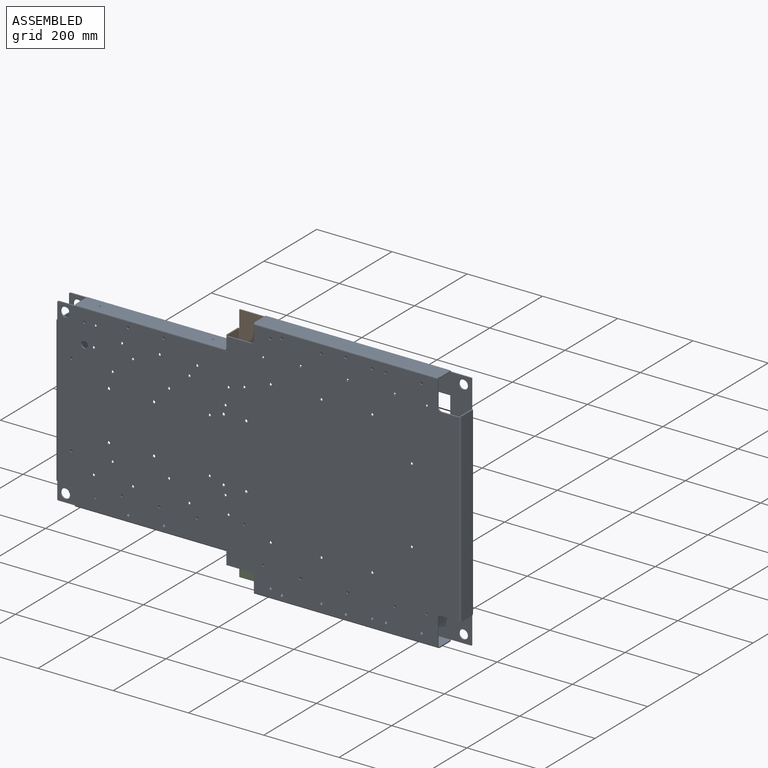
[diagram: assembled view]
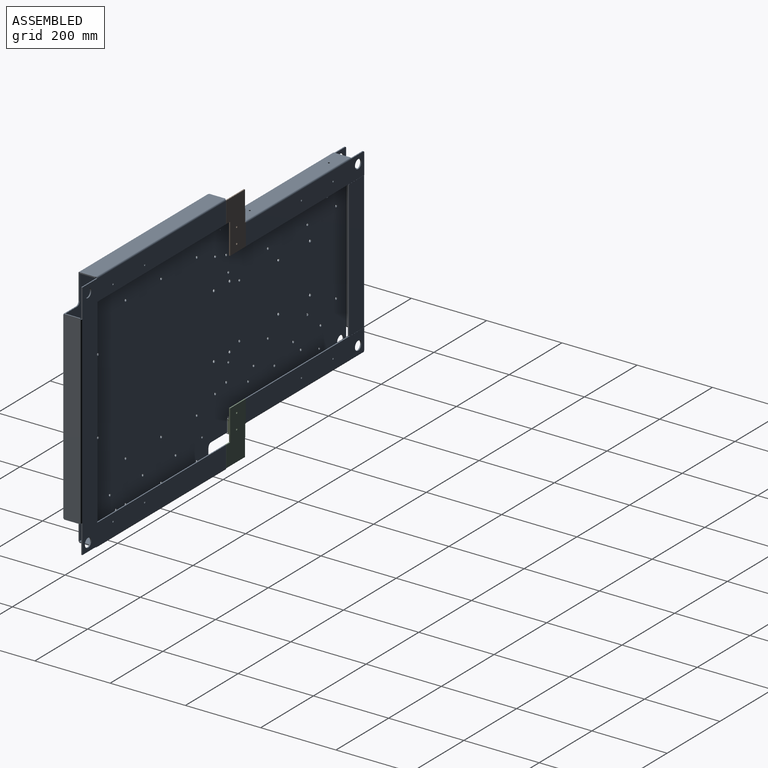
[diagram: assembled view, second angle]
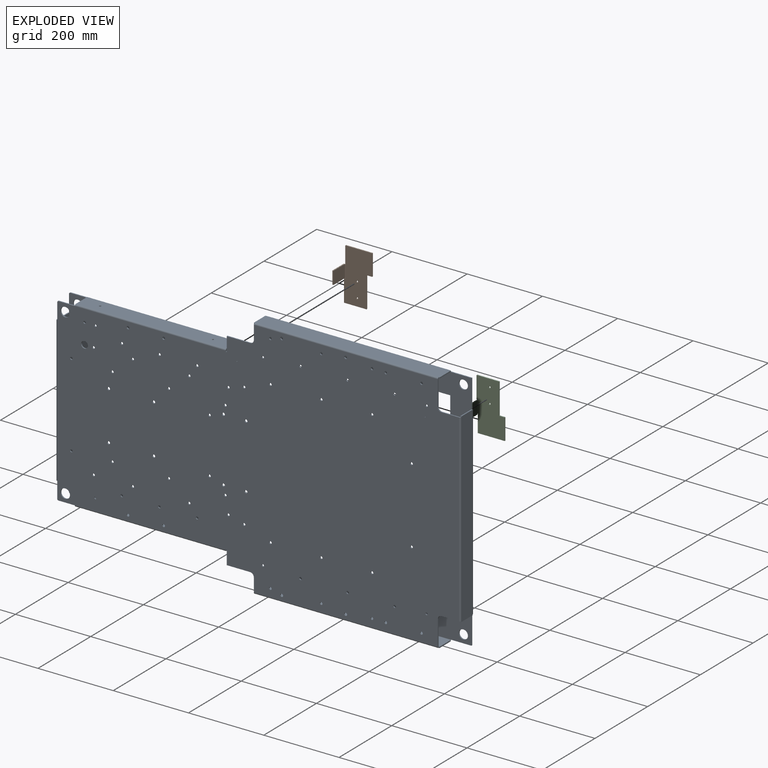
[diagram: exploded view]
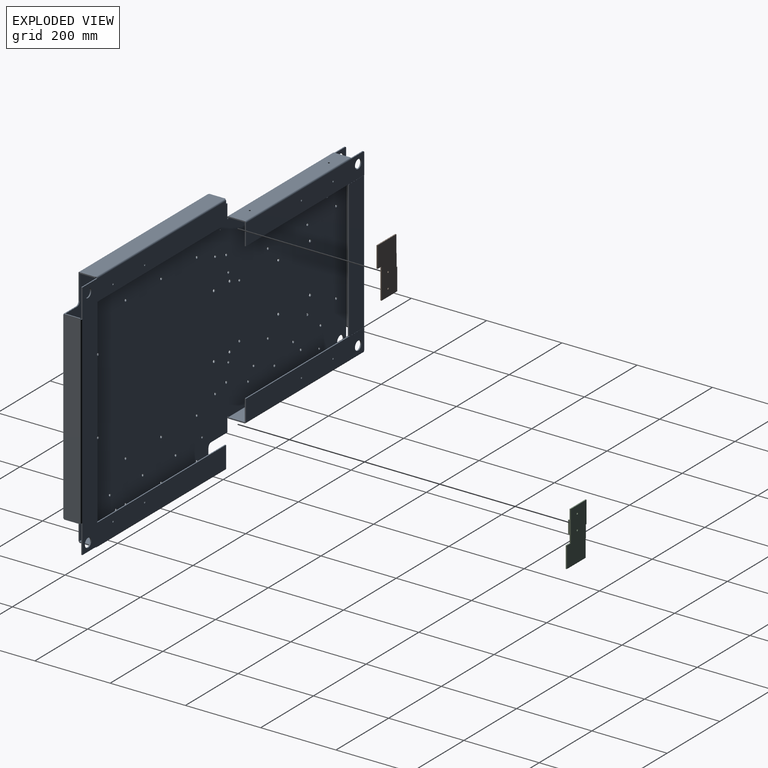
[diagram: exploded view, second angle]
ASSEMBLY  parts=3 mates=2
PART A: 246 faces, bbox 1075x50x650 mm
  f0: plane 385.8x42.8mm, normal (-1,0,0), area 16472.9mm2, adj f2,f3,f121,f184,f185,f186,f187,f190
  f1: plane 385.8x42.8mm, normal (1,0,0), area 16472.9mm2, adj f2,f3,f122,f184,f185,f186,f187,f191
  f2: plane 42.8x3mm, normal (0,0,1), area 128.4mm2, adj f0,f1,f133,f184
  f3: plane 46.4x3.6mm, normal (0,0,-1), area 138.3mm2, adj f0,f1,f121,f122,f136,f187
  f4: plane 3.6x3.6mm, normal (0,0,1), area 9.9mm2, adj f146,f147,f182,f208
  f5: plane 46.5x3mm, normal (0,0,1), area 139.5mm2, adj f110,f111,f177,f179
  f6: plane 66.5x3mm, normal (1,0,0), area 199.5mm2, adj f110,f111,f176,f179
  f7: plane 60x3.6mm, normal (1,0,0), area 179.1mm2, adj f152,f153,f155,f156,f157,f203
  f8: plane 46.5x3mm, normal (0,0,-1), area 139.5mm2, adj f110,f111,f175,f178
  f9: plane 3.6x3.6mm, normal (0,0,-1), area 9.9mm2, adj f146,f147,f180,f213
  f10: plane 60x3.6mm, normal (1,0,0), area 179.1mm2, adj f140,f141,f143,f144,f145,f217
  f11: plane 66.5x3mm, normal (1,0,0), area 199.5mm2, adj f110,f111,f174,f178
  f12: plane 42.8x3mm, normal (1,0,0), area 128.4mm2, adj f13,f14,f130,f167
  f13: plane 400.9x42.8mm, normal (0,0,1), area 17119.3mm2, adj f12,f15,f131,f168,f222,f224
  f14: plane 400.9x42.8mm, normal (0,0,-1), area 17119.3mm2, adj f12,f15,f132,f169,f222,f224
  f15: plane 46.4x3.6mm, normal (-1,0,0), area 138.3mm2, adj f13,f14,f131,f132,f134,f166
  f16: plane 42.8x3mm, normal (-1,0,0), area 128.4mm2, adj f17,f18,f138,f159
  f17: plane 400.9x42.8mm, normal (0,0,-1), area 17119.3mm2, adj f16,f127,f129,f160,f221,f223
  f18: plane 400.9x42.8mm, normal (0,0,1), area 17119.3mm2, adj f16,f128,f129,f161,f221,f223
  f19: plane 492.9x42.8mm, normal (0,0,1), area 21096.1mm2, adj f124,f152,f203,f204,f205,f209,f210,f211
  f20: plane 492.9x42.8mm, normal (0,0,-1), area 21096.1mm2, adj f125,f153,f203,f204,f205,f209,f210,f211
  f21: plane 493.8x42.8mm, normal (1,0,0), area 21134.6mm2, adj f119,f146,f206,f207,f208,f212,f213,f214
  f22: plane 493.8x42.8mm, normal (-1,0,0), area 21134.6mm2, adj f120,f147,f206,f207,f208,f212,f213,f214
  f23: plane 492.9x42.8mm, normal (0,0,-1), area 21096.1mm2, adj f117,f140,f215,f216,f217,f218,f219,f220
  f24: plane 492.9x42.8mm, normal (0,0,1), area 21096.1mm2, adj f118,f141,f215,f216,f217,f218,f219,f220
  f25: plane 3x3mm, normal (0,0,1), area 9mm2, adj f110,f111,f112,f115
  f26: cylinder r=10mm len=10mm, axis (0,1,0), area 47.1mm2, adj f27,f32,f110,f111
  f27: plane 62x3mm, normal (0,0,1), area 186mm2, adj f26,f110,f111,f112
  f28: plane 3x3mm, normal (0,0,-1), area 9mm2, adj f110,f111,f113,f114
  f29: plane 62x3mm, normal (0,0,-1), area 186mm2, adj f30,f110,f111,f113
  f30: cylinder r=10mm len=10mm, axis (0,1,0), area 47.1mm2, adj f29,f31,f110,f111
  f31: plane 36.4x3mm, normal (-1,0,0), area 109.2mm2, adj f30,f110,f111,f116
  f32: plane 36.4x3mm, normal (-1,0,0), area 109.2mm2, adj f26,f110,f111,f123
  f33: cylinder r=12.5mm len=25mm, axis (0,-1,0), area 235.6mm2, adj f110,f111
  f34: cylinder r=12.5mm len=25mm, axis (0,-1,0), area 235.6mm2, adj f110,f111
  f35: cylinder r=3mm len=6mm, axis (0,1,0), area 56.5mm2, adj f110,f111
  f36: cylinder r=3mm len=6mm, axis (0,1,0), area 56.5mm2, adj f110,f111
  f37: cylinder r=3mm len=6mm, axis (0,1,0), area 56.5mm2, adj f110,f111
  f38: cylinder r=3mm len=6mm, axis (0,1,0), area 56.5mm2, adj f110,f111
  f39: cylinder r=3mm len=6mm, axis (0,1,0), area 56.5mm2, adj f110,f111
  f40: cylinder r=3mm len=6mm, axis (0,1,0), area 56.5mm2, adj f110,f111
  f41: cylinder r=3.32mm len=6.65mm, axis (0,1,0), area 62.6mm2, adj f110,f111
  f42: cylinder r=3.32mm len=6.65mm, axis (0,1,0), area 62.6mm2, adj f110,f111
  f43: cylinder r=3.32mm len=6.65mm, axis (0,1,0), area 62.6mm2, adj f110,f111
  f44: cylinder r=3.5mm len=7mm, axis (0,-1,0), area 66mm2, adj f110,f111
  f45: cylinder r=3.5mm len=7mm, axis (0,-1,0), area 66mm2, adj f110,f111
  f46: cylinder r=3.5mm len=7mm, axis (0,-1,0), area 66mm2, adj f110,f111
  f47: cylinder r=3.5mm len=7mm, axis (0,-1,0), area 66mm2, adj f110,f111
  f48: cylinder r=3.5mm len=7mm, axis (0,-1,0), area 66mm2, adj f110,f111
  f49: cylinder r=3.5mm len=7mm, axis (0,-1,0), area 66mm2, adj f110,f111
  f50: cylinder r=3.5mm len=7mm, axis (0,-1,0), area 66mm2, adj f110,f111
  f51: cylinder r=3.5mm len=7mm, axis (0,-1,0), area 66mm2, adj f110,f111
  f52: cylinder r=1.01mm len=3mm, axis (0,1,0), area 19mm2, adj f110,f111
  f53: cylinder r=1.01mm len=3mm, axis (0,1,0), area 19mm2, adj f110,f111
  f54: cylinder r=3.8mm len=7.6mm, axis (0,-1,0), area 71.6mm2, adj f110,f111
  f55: cylinder r=3.8mm len=7.6mm, axis (0,-1,0), area 71.6mm2, adj f110,f111
  f56: cylinder r=3.8mm len=7.6mm, axis (0,-1,0), area 71.6mm2, adj f110,f111
  f57: cylinder r=3.8mm len=7.6mm, axis (0,-1,0), area 71.6mm2, adj f110,f111
  f58: cylinder r=3.8mm len=7.6mm, axis (0,-1,0), area 71.6mm2, adj f110,f111
  f59: cylinder r=3.8mm len=7.6mm, axis (0,-1,0), area 71.6mm2, adj f110,f111
  f60: cylinder r=3.8mm len=7.6mm, axis (0,-1,0), area 71.6mm2, adj f110,f111
  f61: cylinder r=3.8mm len=7.6mm, axis (0,-1,0), area 71.6mm2, adj f110,f111
  f62: cylinder r=3.8mm len=7.6mm, axis (0,-1,0), area 71.6mm2, adj f110,f111
  f63: cylinder r=3.8mm len=7.6mm, axis (0,-1,0), area 71.6mm2, adj f110,f111
  f64: cylinder r=3.8mm len=7.6mm, axis (0,-1,0), area 71.6mm2, adj f110,f111
  f65: cylinder r=3.8mm len=7.6mm, axis (0,-1,0), area 71.6mm2, adj f110,f111
  f66: cylinder r=3.38mm len=6.75mm, axis (0,1,0), area 63.6mm2, adj f110,f111
  f67: cylinder r=3.38mm len=6.75mm, axis (0,1,0), area 63.6mm2, adj f110,f111
  f68: cylinder r=3.38mm len=6.75mm, axis (0,1,0), area 63.6mm2, adj f110,f111
  f69: cylinder r=3.38mm len=6.75mm, axis (0,1,0), area 63.6mm2, adj f110,f111
  f70: cylinder r=3.38mm len=6.75mm, axis (0,1,0), area 63.6mm2, adj f110,f111
  f71: cylinder r=3.38mm len=6.75mm, axis (0,1,0), area 63.6mm2, adj f110,f111
  f72: cylinder r=3.38mm len=6.75mm, axis (0,1,0), area 63.6mm2, adj f110,f111
  f73: cylinder r=3.38mm len=6.75mm, axis (0,1,0), area 63.6mm2, adj f110,f111
  f74: cylinder r=3.38mm len=6.75mm, axis (0,1,0), area 63.6mm2, adj f110,f111
  f75: cylinder r=3.38mm len=6.75mm, axis (0,1,0), area 63.6mm2, adj f110,f111
  f76: cylinder r=3.38mm len=6.75mm, axis (0,1,0), area 63.6mm2, adj f110,f111
  f77: cylinder r=3.38mm len=6.75mm, axis (0,1,0), area 63.6mm2, adj f110,f111
  f78: cylinder r=3.38mm len=6.75mm, axis (0,1,0), area 63.6mm2, adj f110,f111
  f79: cylinder r=3.38mm len=6.75mm, axis (0,1,0), area 63.6mm2, adj f110,f111
  f80: cylinder r=3.38mm len=6.75mm, axis (0,1,0), area 63.6mm2, adj f110,f111
  f81: cylinder r=3.38mm len=6.75mm, axis (0,1,0), area 63.6mm2, adj f110,f111
  f82: cylinder r=3.38mm len=6.75mm, axis (0,1,0), area 63.6mm2, adj f110,f111
  f83: cylinder r=3.38mm len=6.75mm, axis (0,1,0), area 63.6mm2, adj f110,f111
  f84: cylinder r=3.38mm len=6.75mm, axis (0,1,0), area 63.6mm2, adj f110,f111
  f85: cylinder r=3.38mm len=6.75mm, axis (0,1,0), area 63.6mm2, adj f110,f111
  f86: cylinder r=3.38mm len=6.75mm, axis (0,1,0), area 63.6mm2, adj f110,f111
  f87: cylinder r=3.38mm len=6.75mm, axis (0,1,0), area 63.6mm2, adj f110,f111
  f88: cylinder r=3.38mm len=6.75mm, axis (0,1,0), area 63.6mm2, adj f110,f111
  f89: cylinder r=3.38mm len=6.75mm, axis (0,1,0), area 63.6mm2, adj f110,f111
  f90: cylinder r=3.36mm len=6.73mm, axis (0,1,0), area 63.4mm2, adj f110,f111
  f91: cylinder r=3.36mm len=6.73mm, axis (0,1,0), area 63.4mm2, adj f110,f111
  f92: cylinder r=3.36mm len=6.73mm, axis (0,1,0), area 63.4mm2, adj f110,f111
  f93: cylinder r=3.36mm len=6.73mm, axis (0,1,0), area 63.4mm2, adj f110,f111
  f94: cylinder r=3.36mm len=6.73mm, axis (0,1,0), area 63.4mm2, adj f110,f111
  f95: cylinder r=3.36mm len=6.73mm, axis (0,1,0), area 63.4mm2, adj f110,f111
  f96: cylinder r=3.36mm len=6.73mm, axis (0,1,0), area 63.4mm2, adj f110,f111
  f97: cylinder r=3.36mm len=6.73mm, axis (0,1,0), area 63.4mm2, adj f110,f111
  f98: cylinder r=3.36mm len=6.73mm, axis (0,1,0), area 63.4mm2, adj f110,f111
  f99: cylinder r=3.36mm len=6.73mm, axis (0,1,0), area 63.4mm2, adj f110,f111
  f100: cylinder r=3.36mm len=6.73mm, axis (0,1,0), area 63.4mm2, adj f110,f111
  f101: cylinder r=3.36mm len=6.73mm, axis (0,1,0), area 63.4mm2, adj f110,f111
  f102: cylinder r=3.38mm len=6.75mm, axis (0,1,0), area 63.6mm2, adj f110,f111
  f103: cylinder r=3.38mm len=6.75mm, axis (0,1,0), area 63.6mm2, adj f110,f111
  f104: cylinder r=3.38mm len=6.75mm, axis (0,1,0), area 63.6mm2, adj f110,f111
  f105: cylinder r=3.38mm len=6.75mm, axis (0,1,0), area 63.6mm2, adj f110,f111
  f106: cylinder r=3.38mm len=6.75mm, axis (0,1,0), area 63.6mm2, adj f110,f111
  f107: cylinder r=3.38mm len=6.75mm, axis (0,1,0), area 63.6mm2, adj f110,f111
  f108: cylinder r=3.38mm len=6.75mm, axis (0,1,0), area 63.6mm2, adj f110,f111
  f109: cylinder r=3.38mm len=6.75mm, axis (0,1,0), area 63.6mm2, adj f110,f111
  f110: plane 1067.8x642.8mm, normal (0,-1,0), area 593317.1mm2, adj f5,f6,f8,f11,f25,f26,f27,f28
  f111: plane 1067.8x642.8mm, normal (0,1,0), area 593317.1mm2, adj f5,f6,f8,f11,f25,f26,f27,f28
  f112: plane 38x3mm, normal (-1,0,0), area 114mm2, adj f25,f27,f110,f111
  f113: plane 38x3mm, normal (-1,0,0), area 114mm2, adj f28,f29,f110,f111
  f114: plane 3x2.4mm, normal (1,0,0), area 7.2mm2, adj f28,f110,f111,f126
  f115: plane 3x2.4mm, normal (1,0,0), area 7.2mm2, adj f25,f110,f111,f130
  f116: plane 3.6x3.6mm, normal (-1,0,0), area 9.9mm2, adj f31,f117,f118,f220
  f117: cylinder r=3.6mm len=488.9mm, axis (-1,0,0), area 2764.7mm2, adj f23,f110,f116,f174
  f118: cylinder r=0.6mm len=488.9mm, axis (-1,0,0), area 460.8mm2, adj f24,f111,f116,f174
  f119: cylinder r=3.6mm len=489.8mm, axis (0,0,-1), area 2769.8mm2, adj f21,f110,f175,f177
  f120: cylinder r=0.6mm len=489.8mm, axis (0,0,-1), area 461.6mm2, adj f22,f111,f175,f177
  f121: cylinder r=3.6mm len=385.8mm, axis (0,0,1), area 2181.6mm2, adj f0,f3,f110,f133
  f122: cylinder r=0.6mm len=385.8mm, axis (0,0,1), area 363.6mm2, adj f1,f3,f111,f133
  f123: plane 3.6x3.6mm, normal (-1,0,0), area 9.9mm2, adj f32,f124,f125,f209
  f124: cylinder r=3.6mm len=488.9mm, axis (1,0,0), area 2764.7mm2, adj f19,f110,f123,f176
  f125: cylinder r=0.6mm len=488.9mm, axis (1,0,0), area 460.8mm2, adj f20,f111,f123,f176
  f126: plane 3.6x3.6mm, normal (1,0,0), area 9.9mm2, adj f114,f127,f128,f129
  f127: cylinder r=3.6mm len=400.9mm, axis (-1,0,0), area 2267mm2, adj f17,f110,f126,f138
  f128: cylinder r=0.6mm len=400.9mm, axis (-1,0,0), area 377.8mm2, adj f18,f111,f126,f138
  f129: plane 42.8x3mm, normal (1,0,0), area 128.4mm2, adj f17,f18,f126,f158
  f130: plane 3.6x3.6mm, normal (1,0,0), area 9.9mm2, adj f12,f115,f131,f132
  f131: cylinder r=3.6mm len=400.9mm, axis (1,0,0), area 2267mm2, adj f13,f15,f110,f130
  f132: cylinder r=0.6mm len=400.9mm, axis (1,0,0), area 377.8mm2, adj f14,f15,f111,f130
  f133: plane 3.6x3.6mm, normal (0,0,1), area 9.9mm2, adj f2,f121,f122,f135
  f134: plane 43.5x3mm, normal (0,0,1), area 130.5mm2, adj f15,f110,f111,f242
  f135: plane 43.5x3mm, normal (-1,0,0), area 130.5mm2, adj f110,f111,f133,f242
  f136: plane 43.5x3mm, normal (-1,0,0), area 130.5mm2, adj f3,f110,f111,f244
  f137: plane 43.5x3mm, normal (0,0,-1), area 130.5mm2, adj f110,f111,f138,f244
  f138: plane 3.6x3.6mm, normal (-1,0,0), area 9.9mm2, adj f16,f127,f128,f137
  f139: plane 3.6x3.6mm, normal (-1,0,0), area 9.9mm2, adj f140,f141,f142,f218
  f140: cylinder r=3.6mm len=488.9mm, axis (-1,0,0), area 2764.7mm2, adj f10,f23,f139,f143
  f141: cylinder r=0.6mm len=488.9mm, axis (-1,0,0), area 460.8mm2, adj f10,f24,f139,f144
  f142: plane 56.4x3mm, normal (-1,0,0), area 169.2mm2, adj f139,f143,f144,f145
  f143: plane 488.9x56.4mm, normal (0,1,0), area 27537.8mm2, adj f10,f140,f142,f145,f235,f238
  f144: plane 488.9x56.4mm, normal (0,-1,0), area 27537.8mm2, adj f10,f141,f142,f145,f235,f238
  f145: plane 488.9x3mm, normal (0,0,1), area 1466.7mm2, adj f10,f142,f143,f144
  f146: cylinder r=3.6mm len=489.8mm, axis (0,0,-1), area 2769.8mm2, adj f4,f9,f21,f148
  f147: cylinder r=0.6mm len=489.8mm, axis (0,0,-1), area 461.6mm2, adj f4,f9,f22,f149
  f148: plane 642.8x56.4mm, normal (0,1,0), area 35349.1mm2, adj f146,f150,f180,f181,f182,f183,f199,f202
  f149: plane 642.8x56.4mm, normal (0,-1,0), area 35349.1mm2, adj f147,f150,f180,f181,f182,f183,f199,f202
  f150: plane 642.8x3mm, normal (-1,0,0), area 1928.4mm2, adj f148,f149,f181,f183
  f151: plane 3.6x3.6mm, normal (-1,0,0), area 9.9mm2, adj f152,f153,f154,f211
  f152: cylinder r=3.6mm len=488.9mm, axis (1,0,0), area 2764.7mm2, adj f7,f19,f151,f155
  f153: cylinder r=0.6mm len=488.9mm, axis (1,0,0), area 460.8mm2, adj f7,f20,f151,f156
  f154: plane 56.4x3mm, normal (-1,0,0), area 169.2mm2, adj f151,f155,f156,f157
  f155: plane 488.9x56.4mm, normal (0,1,0), area 27537.8mm2, adj f7,f152,f154,f157,f236,f237
  f156: plane 488.9x56.4mm, normal (0,-1,0), area 27537.8mm2, adj f7,f153,f154,f157,f236,f237
  f157: plane 488.9x3mm, normal (0,0,-1), area 1466.7mm2, adj f7,f154,f155,f156
  f158: plane 3.6x3.6mm, normal (1,0,0), area 9.9mm2, adj f129,f160,f161,f162
  f159: plane 3.6x3.6mm, normal (-1,0,0), area 9.9mm2, adj f16,f160,f161,f198
  f160: cylinder r=3.6mm len=400.9mm, axis (-1,0,0), area 2267mm2, adj f17,f158,f159,f163
  f161: cylinder r=0.6mm len=400.9mm, axis (-1,0,0), area 377.8mm2, adj f18,f158,f159,f164
  f162: plane 56.4x3mm, normal (1,0,0), area 169.2mm2, adj f158,f163,f164,f165
  f163: plane 449x58mm, normal (0,1,0), area 24908.4mm2, adj f160,f162,f165,f198,f201,f225,f226,f227
  f164: plane 449x58mm, normal (0,-1,0), area 24908.4mm2, adj f161,f162,f165,f198,f201,f225,f226,f227
  f165: plane 449x3mm, normal (0,0,1), area 1347mm2, adj f162,f163,f164,f225
  f166: plane 3.6x3.6mm, normal (-1,0,0), area 9.9mm2, adj f15,f168,f169,f197
  f167: plane 3.6x3.6mm, normal (1,0,0), area 9.9mm2, adj f12,f168,f169,f170
  f168: cylinder r=3.6mm len=400.9mm, axis (1,0,0), area 2267mm2, adj f13,f166,f167,f171
  f169: cylinder r=0.6mm len=400.9mm, axis (1,0,0), area 377.8mm2, adj f14,f166,f167,f172
  f170: plane 56.4x3mm, normal (1,0,0), area 169.2mm2, adj f167,f171,f172,f173
  f171: plane 449x58mm, normal (0,1,0), area 24908.4mm2, adj f168,f170,f173,f197,f200,f228,f229,f230
  f172: plane 449x58mm, normal (0,-1,0), area 24908.4mm2, adj f169,f170,f173,f197,f200,f228,f229,f230
  f173: plane 449x3mm, normal (0,0,-1), area 1347mm2, adj f170,f171,f172,f230
  f174: plane 3.6x3.6mm, normal (1,0,0), area 9.9mm2, adj f11,f117,f118,f215
  f175: plane 3.6x3.6mm, normal (0,0,-1), area 9.9mm2, adj f8,f119,f120,f212
  f176: plane 3.6x3.6mm, normal (1,0,0), area 9.9mm2, adj f6,f124,f125,f205
  f177: plane 3.6x3.6mm, normal (0,0,1), area 9.9mm2, adj f5,f119,f120,f206
  f178: cylinder r=10mm len=10mm, axis (0,1,0), area 47.1mm2, adj f8,f11,f110,f111
  f179: cylinder r=10mm len=10mm, axis (0,1,0), area 47.1mm2, adj f5,f6,f110,f111
  f180: plane 76.5x3mm, normal (1,0,0), area 229.5mm2, adj f9,f148,f149,f181
  f181: plane 56.4x3mm, normal (0,0,-1), area 169.2mm2, adj f148,f149,f150,f180
  f182: plane 76.5x3mm, normal (1,0,0), area 229.5mm2, adj f4,f148,f149,f183
  f183: plane 56.4x3mm, normal (0,0,1), area 169.2mm2, adj f148,f149,f150,f182
  f184: plane 10.1x3mm, normal (0,1,0), area 30.3mm2, adj f0,f1,f2,f185
  f185: plane 3x0mm, normal (0,0,1), area 0mm2, adj f0,f1,f184,f189
  f186: plane 3x0mm, normal (0,0,-1), area 0mm2, adj f0,f1,f187,f188
  f187: plane 10.1x3mm, normal (0,1,0), area 30.3mm2, adj f0,f1,f3,f186
  f188: plane 3.6x3.6mm, normal (0,0,-1), area 9.9mm2, adj f186,f190,f191,f193
  f189: plane 3.6x3.6mm, normal (0,0,1), area 9.9mm2, adj f185,f190,f191,f192
  f190: cylinder r=3.6mm len=365.6mm, axis (0,0,1), area 2067.4mm2, adj f0,f188,f189,f194
  f191: cylinder r=0.6mm len=365.6mm, axis (0,0,1), area 344.6mm2, adj f1,f188,f189,f195
  f192: plane 56.4x3mm, normal (0,0,1), area 169.2mm2, adj f189,f194,f195,f196
  f193: plane 56.4x3mm, normal (0,0,-1), area 169.2mm2, adj f188,f194,f195,f196
  f194: plane 365.6x56.4mm, normal (0,1,0), area 20619.8mm2, adj f190,f192,f193,f196
  f195: plane 365.6x56.4mm, normal (0,-1,0), area 20619.8mm2, adj f191,f192,f193,f196
  f196: plane 365.6x3mm, normal (1,0,0), area 1096.8mm2, adj f192,f193,f194,f195
  f197: plane 3x1mm, normal (0,0,1), area 3mm2, adj f166,f171,f172,f228
  f198: plane 3x1mm, normal (0,0,-1), area 3mm2, adj f159,f163,f164,f227
  f199: cylinder r=12mm len=24mm, axis (0,1,0), area 226.2mm2, adj f148,f149
  f200: cylinder r=12mm len=24mm, axis (0,1,0), area 226.2mm2, adj f171,f172
  f201: cylinder r=12mm len=24mm, axis (0,1,0), area 226.2mm2, adj f163,f164
  f202: cylinder r=12mm len=24mm, axis (0,1,0), area 226.2mm2, adj f148,f149
  f203: plane 3x2mm, normal (0,1,0), area 6mm2, adj f7,f19,f20,f204
  f204: plane 42.8x3mm, normal (1,0,0), area 128.4mm2, adj f19,f20,f203,f205
  f205: plane 3x2mm, normal (0,-1,0), area 6mm2, adj f19,f20,f176,f204
  f206: plane 3x2mm, normal (0,-1,0), area 6mm2, adj f21,f22,f177,f207
  f207: plane 42.8x3mm, normal (0,0,1), area 128.4mm2, adj f21,f22,f206,f208
  f208: plane 3x2mm, normal (0,1,0), area 6mm2, adj f4,f21,f22,f207
  f209: plane 3x2mm, normal (0,-1,0), area 6mm2, adj f19,f20,f123,f210
  f210: plane 42.8x3mm, normal (-1,0,0), area 128.4mm2, adj f19,f20,f209,f211
  f211: plane 3x2mm, normal (0,1,0), area 6mm2, adj f19,f20,f151,f210
  f212: plane 3x2mm, normal (0,-1,0), area 6mm2, adj f21,f22,f175,f214
  f213: plane 3x2mm, normal (0,1,0), area 6mm2, adj f9,f21,f22,f214
  f214: plane 42.8x3mm, normal (0,0,-1), area 128.4mm2, adj f21,f22,f212,f213
  f215: plane 3x2mm, normal (0,-1,0), area 6mm2, adj f23,f24,f174,f216
  f216: plane 42.8x3mm, normal (1,0,0), area 128.4mm2, adj f23,f24,f215,f217
  f217: plane 3x2mm, normal (0,1,0), area 6mm2, adj f10,f23,f24,f216
  f218: plane 3x2mm, normal (0,1,0), area 6mm2, adj f23,f24,f139,f219
  f219: plane 42.8x3mm, normal (-1,0,0), area 128.4mm2, adj f23,f24,f218,f220
  f220: plane 3x2mm, normal (0,-1,0), area 6mm2, adj f23,f24,f116,f219
  f221: cylinder r=2.5mm len=5mm, axis (0,0,-1), area 47.1mm2, adj f17,f18
  f222: cylinder r=2.5mm len=5mm, axis (0,0,-1), area 47.1mm2, adj f13,f14
  f223: cylinder r=2.5mm len=5mm, axis (0,0,-1), area 47.1mm2, adj f17,f18
  f224: cylinder r=2.5mm len=5mm, axis (0,0,-1), area 47.1mm2, adj f13,f14
  f225: plane 55x3mm, normal (-1,0,0), area 165mm2, adj f163,f164,f165,f243
  f226: plane 44.1x3mm, normal (0,0,-1), area 132.3mm2, adj f163,f164,f227,f243
  f227: plane 3x1.6mm, normal (1,0,0), area 4.8mm2, adj f163,f164,f198,f226
  f228: plane 3x1.6mm, normal (1,0,0), area 4.8mm2, adj f171,f172,f197,f229
  f229: plane 44.1x3mm, normal (0,0,1), area 132.3mm2, adj f171,f172,f228,f241
  f230: plane 55x3mm, normal (-1,0,0), area 165mm2, adj f171,f172,f173,f241
  f231: cylinder r=2.4mm len=4.8mm, axis (0,1,0), area 45.2mm2, adj f163,f164
  f232: cylinder r=2.4mm len=4.8mm, axis (0,1,0), area 45.2mm2, adj f171,f172
  f233: cylinder r=2.4mm len=4.8mm, axis (0,1,0), area 45.2mm2, adj f171,f172
  f234: cylinder r=2.4mm len=4.8mm, axis (0,1,0), area 45.2mm2, adj f163,f164
  f235: cylinder r=2.4mm len=4.8mm, axis (0,1,0), area 45.2mm2, adj f143,f144
  f236: cylinder r=2.4mm len=4.8mm, axis (0,1,0), area 45.2mm2, adj f155,f156
  f237: cylinder r=2.4mm len=4.8mm, axis (0,1,0), area 45.2mm2, adj f155,f156
  f238: cylinder r=2.4mm len=4.8mm, axis (0,1,0), area 45.2mm2, adj f143,f144
  f239: cylinder r=2.5mm len=5mm, axis (-1,0,0), area 47.1mm2, adj f0,f1
  f240: cylinder r=2.5mm len=5mm, axis (-1,0,0), area 47.1mm2, adj f0,f1
  f241: cylinder r=3mm len=3mm, axis (0,1,0), area 14.1mm2, adj f171,f172,f229,f230
  f242: cylinder r=3mm len=3mm, axis (0,-1,0), area 14.1mm2, adj f110,f111,f134,f135
  f243: cylinder r=3mm len=3mm, axis (0,1,0), area 14.1mm2, adj f163,f164,f225,f226
  f244: cylinder r=3mm len=3mm, axis (0,-1,0), area 14.1mm2, adj f110,f111,f136,f137
  f245: cylinder r=9mm len=18mm, axis (0,-1,0), area 169.6mm2, adj f110,f111
PART B: 23 faces, bbox 74.8x138.4x47 mm
  f0: plane 3.6x3.6mm, normal (0,1,0), area 9.9mm2, adj f1,f4,f8,f15
  f1: plane 43.4x3mm, normal (0,1,0), area 130.2mm2, adj f0,f5,f6,f7
  f2: plane 3.6x3.6mm, normal (0,-1,0), area 9.9mm2, adj f4,f8,f11,f19
  f3: plane 138.4x74.6mm, normal (0,0,1), area 8804.9mm2, adj f4,f10,f11,f12,f13,f14,f15,f16
  f4: cylinder r=0.6mm len=32mm, axis (0,-1,0), area 30.2mm2, adj f0,f2,f3,f5
  f5: plane 43.4x34mm, normal (-1,0,0), area 1475.6mm2, adj f1,f4,f6,f19,f20
  f6: plane 34x3mm, normal (0,0,1), area 102mm2, adj f1,f5,f7,f20
  f7: plane 43.4x34mm, normal (1,0,0), area 1475.6mm2, adj f1,f6,f8,f19,f20
  f8: cylinder r=3.6mm len=32mm, axis (0,-1,0), area 181mm2, adj f0,f2,f7,f9
  f9: plane 138.4x74.6mm, normal (0,0,-1), area 8804.9mm2, adj f8,f10,f11,f12,f13,f14,f15,f16
  f10: plane 82x3mm, normal (-1,0,0), area 246mm2, adj f3,f9,f12,f18
  f11: plane 46.4x3mm, normal (1,0,0), area 139.2mm2, adj f2,f3,f9,f14
  f12: plane 14.8x3mm, normal (0,1,0), area 44.4mm2, adj f3,f9,f10,f13
  f13: plane 56.4x3mm, normal (-1,0,0), area 169.2mm2, adj f3,f9,f12,f14
  f14: plane 71.2x3mm, normal (0,-1,0), area 213.6mm2, adj f3,f9,f11,f13
  f15: plane 3x1mm, normal (1,0,0), area 3mm2, adj f0,f3,f9,f16
  f16: plane 3.4x3mm, normal (0,-1,0), area 10.2mm2, adj f3,f9,f15,f17
  f17: plane 59x3mm, normal (1,0,0), area 177mm2, adj f3,f9,f16,f18
  f18: plane 59.8x3mm, normal (0,1,0), area 179.4mm2, adj f3,f9,f10,f17
  f19: plane 3x2mm, normal (0,0,-1), area 6mm2, adj f2,f5,f7,f20
  f20: plane 43.4x3mm, normal (0,-1,0), area 130.2mm2, adj f5,f6,f7,f19
  f21: cylinder r=2.4mm len=4.8mm, axis (0,0,-1), area 45.2mm2, adj f3,f9
  f22: cylinder r=2.4mm len=4.8mm, axis (0,0,-1), area 45.2mm2, adj f3,f9
PART C: 23 faces, bbox 74.8x138.4x47 mm
  f0: plane 3.6x3.6mm, normal (0,1,0), area 9.9mm2, adj f1,f4,f8,f15
  f1: plane 43.4x3mm, normal (0,1,0), area 130.2mm2, adj f0,f5,f6,f7
  f2: plane 3.6x3.6mm, normal (0,-1,0), area 9.9mm2, adj f4,f8,f11,f19
  f3: plane 138.4x74.6mm, normal (0,0,1), area 8804.9mm2, adj f4,f10,f11,f12,f13,f14,f15,f16
  f4: cylinder r=0.6mm len=32mm, axis (0,-1,0), area 30.2mm2, adj f0,f2,f3,f5
  f5: plane 43.4x34mm, normal (1,0,0), area 1475.6mm2, adj f1,f4,f6,f19,f20
  f6: plane 34x3mm, normal (0,0,1), area 102mm2, adj f1,f5,f7,f20
  f7: plane 43.4x34mm, normal (-1,0,0), area 1475.6mm2, adj f1,f6,f8,f19,f20
  f8: cylinder r=3.6mm len=32mm, axis (0,-1,0), area 181mm2, adj f0,f2,f7,f9
  f9: plane 138.4x74.6mm, normal (0,0,-1), area 8804.9mm2, adj f8,f10,f11,f12,f13,f14,f15,f16
  f10: plane 82x3mm, normal (1,0,0), area 246mm2, adj f3,f9,f12,f18
  f11: plane 46.4x3mm, normal (-1,0,0), area 139.2mm2, adj f2,f3,f9,f14
  f12: plane 14.8x3mm, normal (0,1,0), area 44.4mm2, adj f3,f9,f10,f13
  f13: plane 56.4x3mm, normal (1,0,0), area 169.2mm2, adj f3,f9,f12,f14
  f14: plane 71.2x3mm, normal (0,-1,0), area 213.6mm2, adj f3,f9,f11,f13
  f15: plane 3x1mm, normal (-1,0,0), area 3mm2, adj f0,f3,f9,f16
  f16: plane 3.4x3mm, normal (0,-1,0), area 10.2mm2, adj f3,f9,f15,f17
  f17: plane 59x3mm, normal (-1,0,0), area 177mm2, adj f3,f9,f16,f18
  f18: plane 59.8x3mm, normal (0,1,0), area 179.4mm2, adj f3,f9,f10,f17
  f19: plane 3x2mm, normal (0,0,-1), area 6mm2, adj f2,f5,f7,f20
  f20: plane 43.4x3mm, normal (0,-1,0), area 130.2mm2, adj f5,f6,f7,f19
  f21: cylinder r=2.4mm len=4.8mm, axis (0,0,-1), area 45.2mm2, adj f3,f9
  f22: cylinder r=2.4mm len=4.8mm, axis (0,0,-1), area 45.2mm2, adj f3,f9
PLACE A at identity fixed
PLACE B rot(axis=(0,-0.71,0.71),180deg) t=(-86.7,-47,275)mm
PLACE C rot(axis=(1,0,0),90deg) t=(-86.7,-47,-275)mm
MATE planar A.f163 <-> C.f9  axis (0,1,0) through (-86.5,0,-183)mm
MATE planar B.f9 <-> A.f171  axis (0,1,0) through (-86.5,0,183)mm
